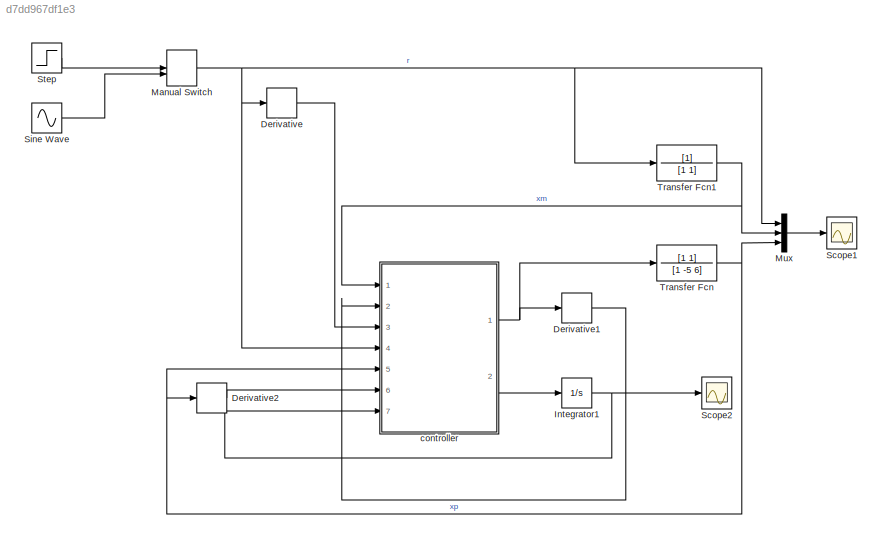
MODEL slx_d7dd967df1e3
KIND model
CONFIG AbsTol = auto
CONFIG FixedStep = 0.01
CONFIG MaxStep = auto
CONFIG MinStep = auto
CONFIG RelTol = 1e-3
CONFIG SampleTimeConstraint = Unconstrained
CONFIG Solver = ode45
CONFIG SolverMode = Auto
CONFIG SolverName = ode45
CONFIG StartTime = 0.0
CONFIG StopTime = 3
BLOCK [Derivative] Derivative
BLOCK [Derivative] Derivative1
BLOCK [Derivative] Derivative2
BLOCK [Integrator] Integrator1
  InitialCondition = theta0
  Ports = [1, 1]
BLOCK [ManualSwitch] Manual Switch
  CurrentSetting = 0
BLOCK [Mux] Mux
  DisplayOption = bar
  Inputs = 3
  Ports = [3, 1]
BLOCK [Scope] Scope1
  Floating = off
  LegendLocations = 0.71421     0.71366     0.11562     0.18907
  LimitDataPoints = off
  NumInputPorts = 1
  Ports = [1]
  SaveName = ScopeData1
  ShowLegends = on
  YMax = 1.4
  YMin = 0
  ZoomMode = yonly
BLOCK [Scope] Scope2
  Floating = off
  LegendLocations = 0.71872     0.95894     0.21471     0.30492
  LimitDataPoints = off
  NumInputPorts = 1
  Ports = [1]
  SaveName = ScopeData2
  ShowLegends = on
  YMax = 2.5e+07
  YMin = -4.5e+07
BLOCK [Sin] Sine Wave
  Ports = [0, 1]
  SampleTime = 0
BLOCK [Step] Step
  SampleTime = 0
BLOCK [TransferFcn] Transfer Fcn
  Denominator = [1 -5 6]
  Numerator = [1 1]
BLOCK [TransferFcn] Transfer Fcn1
  Denominator = [1 1]
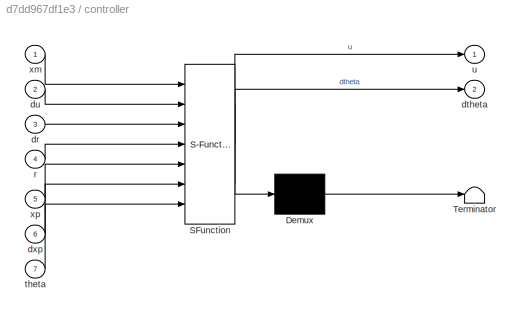
BLOCK [SubSystem] controller
  ErrorFcn = Stateflow.Translate.translate
  PermitHierarchicalResolution = ExplicitOnly
  Ports = [7, 2]
  RequestExecContextInheritance = off
  SFBlockType = MATLAB Function
  TreatAsAtomicUnit = on
BLOCK [Demux] controller/ Demux 
  Outputs = 1
  Ports = [1, 1]
BLOCK [S-Function] controller/ SFunction 
  EnableBusSupport = on
  FunctionName = sf_sfun
  Parameters = gamma
  PortCounts = [7 3]
  Ports = [7, 3]
  Tag = Stateflow S-Function simu 2
BLOCK [Terminator] controller/ Terminator 
BLOCK [Inport] controller/dr
  IconDisplay = Port number
  Port = 3
BLOCK [Outport] controller/dtheta
  IconDisplay = Port number
  Port = 2
BLOCK [Inport] controller/du
  IconDisplay = Port number
  Port = 2
BLOCK [Inport] controller/dxp
  IconDisplay = Port number
  Port = 6
BLOCK [Inport] controller/r
  IconDisplay = Port number
  Port = 4
BLOCK [Inport] controller/theta
  IconDisplay = Port number
  Port = 7
BLOCK [Outport] controller/u
  IconDisplay = Port number
BLOCK [Inport] controller/xm
  IconDisplay = Port number
BLOCK [Inport] controller/xp
  IconDisplay = Port number
  Port = 5
LINE Derivative1:1 -> controller:2
LINE Derivative2:1 -> controller:6
LINE Derivative:1 -> controller:3
NET Integrator1:1 -> Scope2:1, controller:7
NET Manual Switch:1 -> Derivative:1, Mux:1, Transfer Fcn1:1, controller:4
LINE Mux:1 -> Scope1:1
LINE Sine Wave:1 -> Manual Switch:2
LINE Step:1 -> Manual Switch:1
NET Transfer Fcn1:1 -> Mux:2, controller:1
NET Transfer Fcn:1 -> Derivative2:1, Mux:3, controller:5
NET controller:1 -> Derivative1:1, Transfer Fcn:1
LINE controller:2 -> Integrator1:1
note: NET lines group one-source signal fan-out (src -> all destinations, sorted); 1:1 wires keep LINE
CHART controller states=1 transitions=1
  STATE_LABEL 'eML_blk_kernel()'
  STATE_LABEL "SCRIPT:\nfunction [u, dtheta] = controller(xm, du, dr, r, xp, dxp, theta, gamma)\n%#codegen\n\ne = xp - xm;\n\nphi = [dr, r, dxp, xp, du]';\n\nu = theta'*phi;\n\ndtheta = -gamma*phi*e;"
